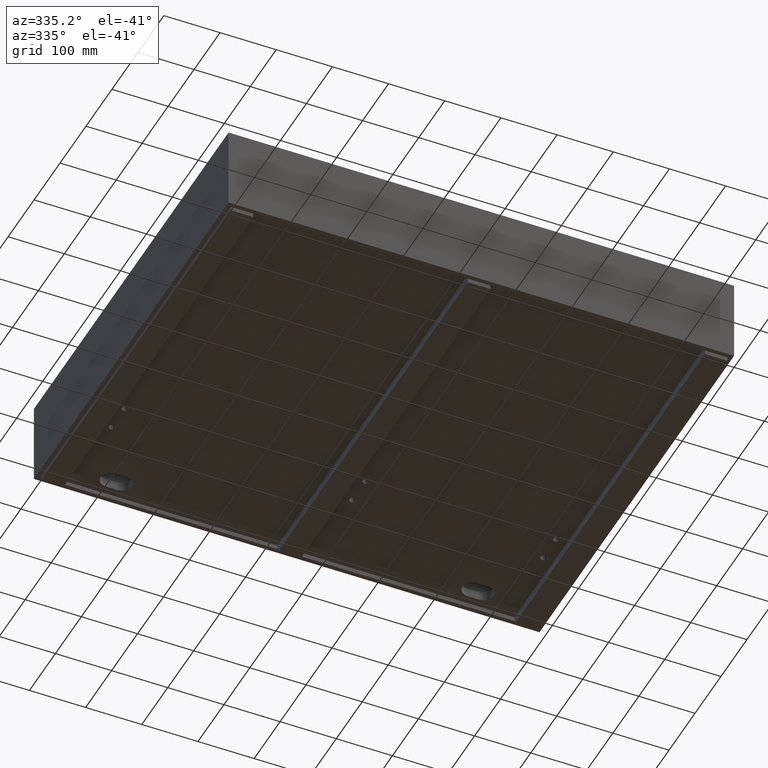
[diagram: clean part render]
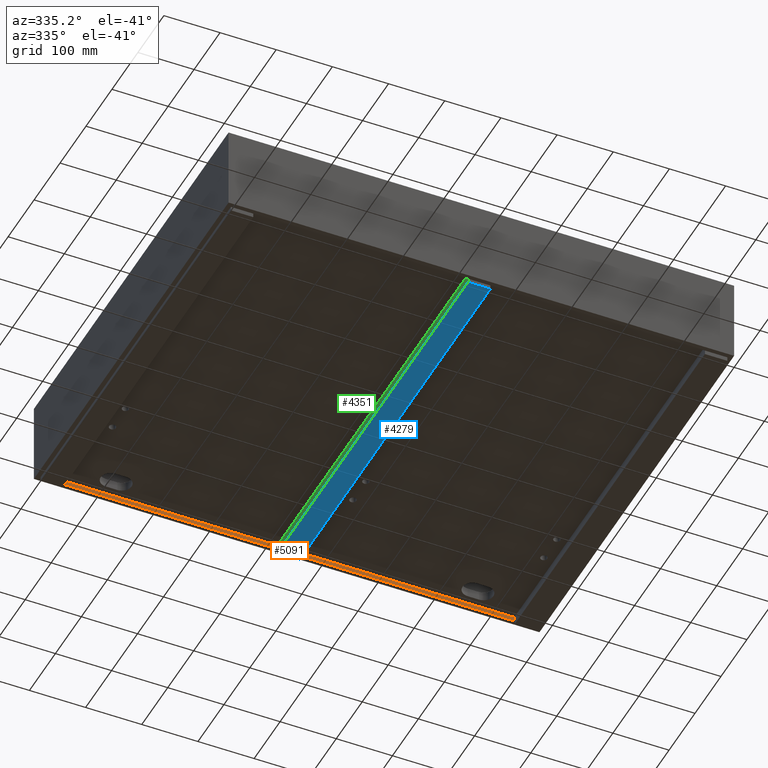
[diagram: same view with three faces highlighted in distinct colors, each labeled with its STEP entity id]
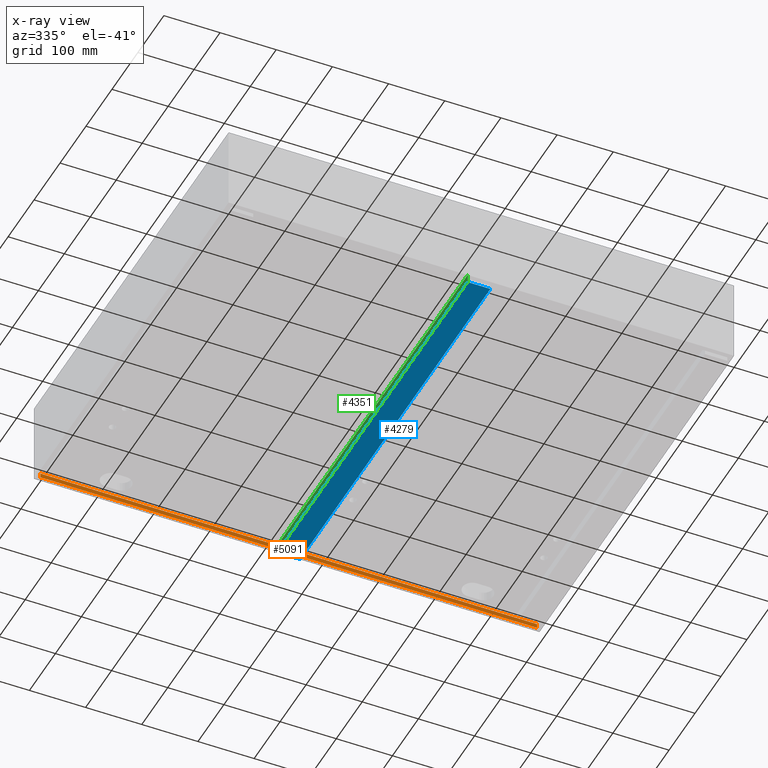
[diagram: x-ray of the same camera — body ghosted, the three highlighted faces saturated]
A machine part, auxiliary view with three faces highlighted in distinct colors.
The next image is the same camera in x-ray (body ghosted, the three faces saturated) — at least one of them is partly hidden behind the body in this view.
Their STEP definitions:

[orange] entity #5091 — the highlighted planar face has unit normal (0, 1, 0).
#207 = FACE_OUTER_BOUND ( 'NONE', #3045, .T. ) ;
#303 = LINE ( 'NONE', #3702, #2823 ) ;
#736 = EDGE_CURVE ( 'NONE', #1104, #3465, #6739, .T. ) ;
#868 = VECTOR ( 'NONE', #10159, 1000.000000000000000 ) ;
#1104 = VERTEX_POINT ( 'NONE', #10195 ) ;
#1395 = AXIS2_PLACEMENT_3D ( 'NONE', #7033, #10438, #2776 ) ;
#2204 = VECTOR ( 'NONE', #2489, 1000.000000000000000 ) ;
#2338 = VECTOR ( 'NONE', #9376, 1000.000000000000000 ) ;
#2489 = DIRECTION ( 'NONE',  ( 1.000000000000000000, -7.703719777548943412E-34, 1.233581138472399662E-16 ) ) ;
#2555 = LINE ( 'NONE', #5958, #2338 ) ;
#2568 = EDGE_CURVE ( 'NONE', #9799, #3341, #2555, .T. ) ;
#2776 = DIRECTION ( 'NONE',  ( 0.0000000000000000000, -1.734723475976806324E-18, 1.000000000000000000 ) ) ;
#2823 = VECTOR ( 'NONE', #7123, 1000.000000000000000 ) ;
#3045 = EDGE_LOOP ( 'NONE', ( #7482, #8942, #3601, #6186 ) ) ;
#3125 = CARTESIAN_POINT ( 'NONE',  ( 892.0000000000000000, 741.9999000000000251, -150.0000000000000284 ) ) ;
#3336 = LINE ( 'NONE', #6748, #868 ) ;
#3341 = VERTEX_POINT ( 'NONE', #4977 ) ;
#3465 = VERTEX_POINT ( 'NONE', #7787 ) ;
#3601 = ORIENTED_EDGE ( 'NONE', *, *, #5629, .T. ) ;
#3613 = PLANE ( 'NONE',  #1395 ) ;
#3702 = CARTESIAN_POINT ( 'NONE',  ( 892.0000000000000000, 741.9999000000000251, 4.163336342344337027E-14 ) ) ;
#4977 = CARTESIAN_POINT ( 'NONE',  ( 8.000000000000007105, 741.9999000000000251, -150.0000000000000284 ) ) ;
#5091 = ADVANCED_FACE ( 'NONE', ( #207 ), #3613, .F. ) ;
#5576 = EDGE_CURVE ( 'NONE', #9799, #3465, #303, .T. ) ;
#5629 = EDGE_CURVE ( 'NONE', #1104, #3341, #3336, .T. ) ;
#5958 = CARTESIAN_POINT ( 'NONE',  ( 0.0000000000000000000, 741.9999000000000251, -150.0000000000000284 ) ) ;
#6186 = ORIENTED_EDGE ( 'NONE', *, *, #2568, .F. ) ;
#6739 = LINE ( 'NONE', #10151, #2204 ) ;
#6748 = CARTESIAN_POINT ( 'NONE',  ( 8.000000000000007105, 741.9999000000000251, -150.0000000000000284 ) ) ;
#7033 = CARTESIAN_POINT ( 'NONE',  ( 0.0000000000000000000, 741.9999000000000251, 4.163336342344337027E-14 ) ) ;
#7123 = DIRECTION ( 'NONE',  ( 0.0000000000000000000, -1.734723475976806324E-18, 1.000000000000000000 ) ) ;
#7482 = ORIENTED_EDGE ( 'NONE', *, *, #5576, .T. ) ;
#7787 = CARTESIAN_POINT ( 'NONE',  ( 892.0000000000000000, 741.9999000000000251, -142.0000000000001137 ) ) ;
#8942 = ORIENTED_EDGE ( 'NONE', *, *, #736, .F. ) ;
#9376 = DIRECTION ( 'NONE',  ( -1.000000000000000000, 0.0000000000000000000, 0.0000000000000000000 ) ) ;
#9799 = VERTEX_POINT ( 'NONE', #3125 ) ;
#10151 = CARTESIAN_POINT ( 'NONE',  ( 900.0000000000000000, 741.9999000000000251, -142.0000000000001137 ) ) ;
#10159 = DIRECTION ( 'NONE',  ( -1.228762462150236551E-16, 1.734723475976806324E-18, -1.000000000000000000 ) ) ;
#10195 = CARTESIAN_POINT ( 'NONE',  ( 8.000000000000007105, 741.9999000000000251, -142.0000000000002274 ) ) ;
#10438 = DIRECTION ( 'NONE',  ( 0.0000000000000000000, 1.000000000000000000, 1.734723475976806324E-18 ) ) ;

[blue] entity #4279 — the highlighted planar face has unit normal (0, 0, -1).
#475 = FACE_OUTER_BOUND ( 'NONE', #8438, .T. ) ;
#814 = LINE ( 'NONE', #4200, #1804 ) ;
#1764 = DIRECTION ( 'NONE',  ( -1.000000000000000000, 1.301042606982606060E-16, 0.0000000000000000000 ) ) ;
#1797 = VERTEX_POINT ( 'NONE', #10447 ) ;
#1804 = VECTOR ( 'NONE', #7626, 1000.000000000000000 ) ;
#2296 = VECTOR ( 'NONE', #1764, 1000.000000000000000 ) ;
#2476 = LINE ( 'NONE', #5877, #3219 ) ;
#2954 = EDGE_CURVE ( 'NONE', #6446, #1797, #2476, .T. ) ;
#2974 = EDGE_CURVE ( 'NONE', #4898, #6446, #814, .T. ) ;
#3031 = DIRECTION ( 'NONE',  ( -1.000000000000000000, 3.216981146715677708E-35, 0.0000000000000000000 ) ) ;
#3219 = VECTOR ( 'NONE', #9304, 1000.000000000000000 ) ;
#3231 = ORIENTED_EDGE ( 'NONE', *, *, #2954, .T. ) ;
#3556 = CARTESIAN_POINT ( 'NONE',  ( 429.9999999999999432, 8.499999999999952038, -157.0000000000003126 ) ) ;
#3564 = LINE ( 'NONE', #6984, #10126 ) ;
#3864 = PLANE ( 'NONE',  #9004 ) ;
#4200 = CARTESIAN_POINT ( 'NONE',  ( 470.0000000000000568, 741.4999000000001388, -157.0000000000003126 ) ) ;
#4279 = ADVANCED_FACE ( 'NONE', ( #475 ), #3864, .T. ) ;
#4818 = EDGE_CURVE ( 'NONE', #9996, #4898, #3564, .T. ) ;
#4898 = VERTEX_POINT ( 'NONE', #9163 ) ;
#5757 = ORIENTED_EDGE ( 'NONE', *, *, #2974, .T. ) ;
#5877 = CARTESIAN_POINT ( 'NONE',  ( 470.0000000000000568, 741.4999000000001388, -157.0000000000003126 ) ) ;
#5998 = LINE ( 'NONE', #9424, #2296 ) ;
#6117 = EDGE_CURVE ( 'NONE', #1797, #9996, #5998, .T. ) ;
#6446 = VERTEX_POINT ( 'NONE', #8348 ) ;
#6984 = CARTESIAN_POINT ( 'NONE',  ( 430.0000000000000000, 741.4999000000001388, -157.0000000000003126 ) ) ;
#7122 = ORIENTED_EDGE ( 'NONE', *, *, #6117, .T. ) ;
#7283 = CARTESIAN_POINT ( 'NONE',  ( 0.0000000000000000000, 0.0000000000000000000, -157.0000000000003126 ) ) ;
#7626 = DIRECTION ( 'NONE',  ( 1.000000000000000000, -3.216981146715677708E-35, 0.0000000000000000000 ) ) ;
#8348 = CARTESIAN_POINT ( 'NONE',  ( 470.0000000000000568, 741.4999000000001388, -157.0000000000003126 ) ) ;
#8438 = EDGE_LOOP ( 'NONE', ( #3231, #7122, #9025, #5757 ) ) ;
#9004 = AXIS2_PLACEMENT_3D ( 'NONE', #7283, #10691, #3031 ) ;
#9025 = ORIENTED_EDGE ( 'NONE', *, *, #4818, .T. ) ;
#9163 = CARTESIAN_POINT ( 'NONE',  ( 430.0000000000000000, 741.4999000000001388, -157.0000000000003126 ) ) ;
#9304 = DIRECTION ( 'NONE',  ( -1.514629162466674743E-16, -1.000000000000000000, 0.0000000000000000000 ) ) ;
#9424 = CARTESIAN_POINT ( 'NONE',  ( 469.9999999999999432, 8.499999999999952038, -157.0000000000003126 ) ) ;
#9996 = VERTEX_POINT ( 'NONE', #3556 ) ;
#10126 = VECTOR ( 'NONE', #10396, 1000.000000000000000 ) ;
#10396 = DIRECTION ( 'NONE',  ( 7.573145812333373714E-17, 1.000000000000000000, 3.851859888774471706E-34 ) ) ;
#10447 = CARTESIAN_POINT ( 'NONE',  ( 469.9999999999999432, 8.499999999999952038, -157.0000000000003126 ) ) ;
#10691 = DIRECTION ( 'NONE',  ( 0.0000000000000000000, 0.0000000000000000000, -1.000000000000000000 ) ) ;

[green] entity #4351 — the highlighted planar face has unit normal (1, -0, -0).
#66 = CARTESIAN_POINT ( 'NONE',  ( 430.0000000000000000, 741.4999000000001388, -141.0000000000002842 ) ) ;
#115 = EDGE_CURVE ( 'NONE', #9996, #6203, #6050, .T. ) ;
#314 = ORIENTED_EDGE ( 'NONE', *, *, #3911, .F. ) ;
#1473 = DIRECTION ( 'NONE',  ( -1.423362852083532914E-16, 0.0000000000000000000, -1.000000000000000000 ) ) ;
#1727 = ORIENTED_EDGE ( 'NONE', *, *, #115, .T. ) ;
#1732 = AXIS2_PLACEMENT_3D ( 'NONE', #5703, #9128, #1473 ) ;
#1812 = DIRECTION ( 'NONE',  ( 1.423362852083532914E-16, 0.0000000000000000000, 1.000000000000000000 ) ) ;
#2303 = PLANE ( 'NONE',  #1732 ) ;
#3437 = ORIENTED_EDGE ( 'NONE', *, *, #7006, .T. ) ;
#3468 = DIRECTION ( 'NONE',  ( 7.573145812333373714E-17, 1.000000000000000000, 3.851859888774471706E-34 ) ) ;
#3556 = CARTESIAN_POINT ( 'NONE',  ( 429.9999999999999432, 8.499999999999952038, -157.0000000000003126 ) ) ;
#3561 = LINE ( 'NONE', #6981, #7027 ) ;
#3564 = LINE ( 'NONE', #6984, #10126 ) ;
#3652 = CARTESIAN_POINT ( 'NONE',  ( 429.9999999999999432, 8.499999999999952038, -141.0000000000002842 ) ) ;
#3911 = EDGE_CURVE ( 'NONE', #4898, #7882, #3561, .T. ) ;
#4131 = VECTOR ( 'NONE', #1812, 1000.000000000000000 ) ;
#4351 = ADVANCED_FACE ( 'NONE', ( #9960 ), #2303, .F. ) ;
#4818 = EDGE_CURVE ( 'NONE', #9996, #4898, #3564, .T. ) ;
#4898 = VERTEX_POINT ( 'NONE', #9163 ) ;
#5625 = CARTESIAN_POINT ( 'NONE',  ( 430.0000000000000000, 741.4999000000001388, -141.0000000000002842 ) ) ;
#5703 = CARTESIAN_POINT ( 'NONE',  ( 430.0000000000000000, 741.4999000000001388, -157.0000000000003126 ) ) ;
#6050 = LINE ( 'NONE', #9471, #4131 ) ;
#6203 = VERTEX_POINT ( 'NONE', #3652 ) ;
#6981 = CARTESIAN_POINT ( 'NONE',  ( 430.0000000000000000, 741.4999000000001388, -157.0000000000003126 ) ) ;
#6984 = CARTESIAN_POINT ( 'NONE',  ( 430.0000000000000000, 741.4999000000001388, -157.0000000000003126 ) ) ;
#7006 = EDGE_CURVE ( 'NONE', #6203, #7882, #7722, .T. ) ;
#7027 = VECTOR ( 'NONE', #10392, 1000.000000000000000 ) ;
#7722 = LINE ( 'NONE', #66, #9098 ) ;
#7882 = VERTEX_POINT ( 'NONE', #5625 ) ;
#8497 = ORIENTED_EDGE ( 'NONE', *, *, #4818, .F. ) ;
#9098 = VECTOR ( 'NONE', #3468, 1000.000000000000000 ) ;
#9128 = DIRECTION ( 'NONE',  ( 1.000000000000000000, -7.573145812333373714E-17, -1.423362852083532914E-16 ) ) ;
#9163 = CARTESIAN_POINT ( 'NONE',  ( 430.0000000000000000, 741.4999000000001388, -157.0000000000003126 ) ) ;
#9471 = CARTESIAN_POINT ( 'NONE',  ( 429.9999999999999432, 8.499999999999952038, -157.0000000000003126 ) ) ;
#9960 = FACE_OUTER_BOUND ( 'NONE', #10301, .T. ) ;
#9996 = VERTEX_POINT ( 'NONE', #3556 ) ;
#10126 = VECTOR ( 'NONE', #10396, 1000.000000000000000 ) ;
#10301 = EDGE_LOOP ( 'NONE', ( #3437, #314, #8497, #1727 ) ) ;
#10392 = DIRECTION ( 'NONE',  ( 1.423362852083532914E-16, 0.0000000000000000000, 1.000000000000000000 ) ) ;
#10396 = DIRECTION ( 'NONE',  ( 7.573145812333373714E-17, 1.000000000000000000, 3.851859888774471706E-34 ) ) ;